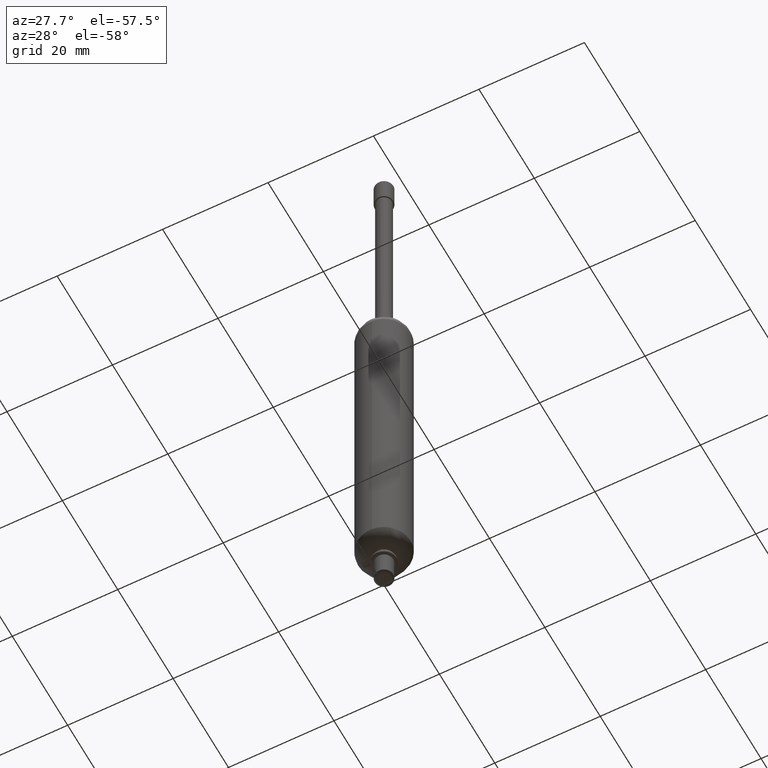
[diagram: clean part render]
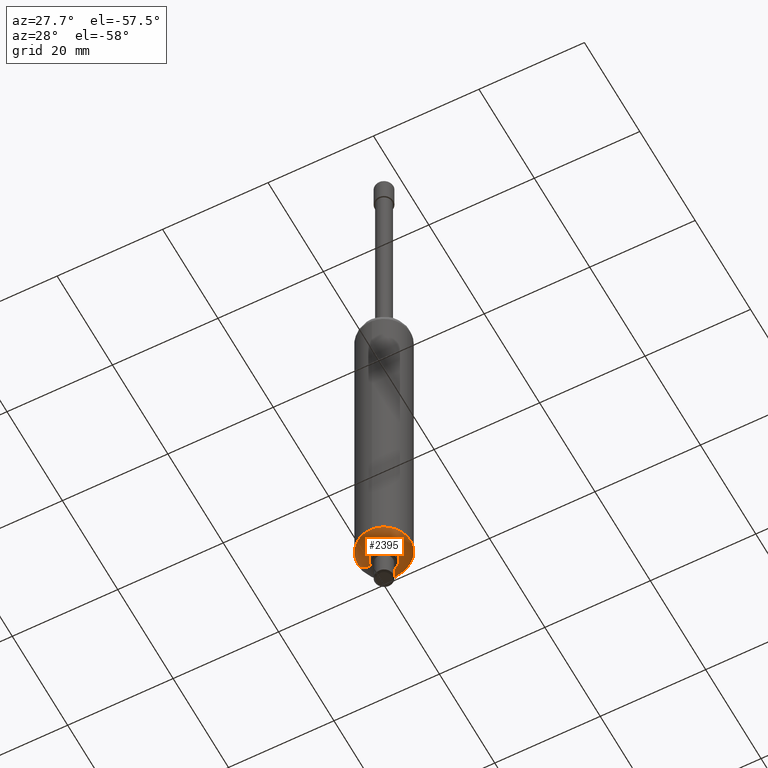
[diagram: same view with one face highlighted and labeled with its STEP entity id]
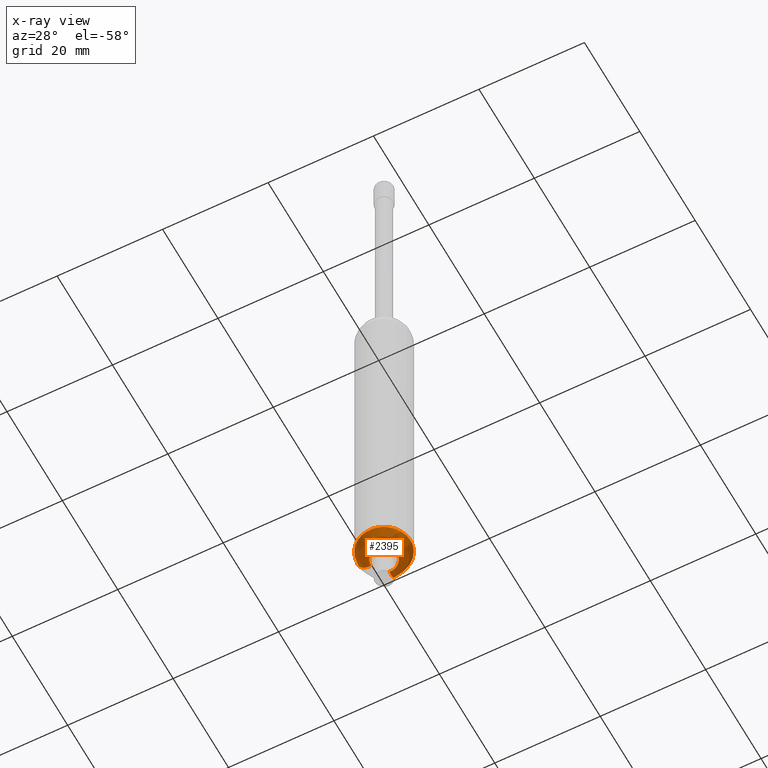
[diagram: x-ray of the same camera — body ghosted, the highlighted face saturated]
A machine part, auxiliary view. The second image highlights one B-rep face of the part: STEP entity #2395.
The next image is the same camera in x-ray: the body ghosted, the highlighted face saturated — about 0% of this face is hidden behind the body in this view.
In plain terms, the highlighted face is a freeform B-spline surface patch.
Its self-contained STEP definition (entity closure, byte-faithful):
#1209=CARTESIAN_POINT('',(-4.680717893870416,-1.758089871990479,-67.500000000000000));
#1210=VERTEX_POINT('',#1209);
#1211=CARTESIAN_POINT('',(-4.999999999999398,0.0,-67.500000000000000));
#1212=VERTEX_POINT('',#1211);
#1213=CARTESIAN_POINT('',(-4.680717893870416,-1.758089871990479,-67.500000000000000));
#1214=CARTESIAN_POINT('',(-4.999999999999398,-0.908036930369878,-67.500000000000000));
#1215=CARTESIAN_POINT('',(-4.999999999999398,0.0,-67.500000000000000));
#1223=(BOUNDED_CURVE()B_SPLINE_CURVE(2,(#1213,#1214,#1215),.UNSPECIFIED.,.F.,.U.)B_SPLINE_CURVE_WITH_KNOTS((3,3),(0.940284170896698,1.0),.UNSPECIFIED.)CURVE()GEOMETRIC_REPRESENTATION_ITEM()RATIONAL_B_SPLINE_CURVE((0.893499554633060,0.930038554399280,1.0))REPRESENTATION_ITEM(''));
#1224=EDGE_CURVE('',#1210,#1212,#1223,.T.);
#1295=CARTESIAN_POINT('',(0.305242697969078,-4.990673992090914,-67.500000000000000));
#1296=VERTEX_POINT('',#1295);
#1302=CARTESIAN_POINT('',(4.999999999999782,0.0,-67.500000000000000));
#1303=VERTEX_POINT('',#1302);
#1304=CARTESIAN_POINT('',(4.999999999999782,0.0,-67.500000000000000));
#1305=CARTESIAN_POINT('',(4.999999999999782,-4.703530333971672,-67.499999999999986));
#1306=CARTESIAN_POINT('',(0.305242697969078,-4.990673992090914,-67.500000000000000));
#1314=(BOUNDED_CURVE()B_SPLINE_CURVE(2,(#1304,#1305,#1306),.UNSPECIFIED.,.F.,.U.)B_SPLINE_CURVE_WITH_KNOTS((3,3),(0.500000000000000,0.739332962221595),.UNSPECIFIED.)CURVE()GEOMETRIC_REPRESENTATION_ITEM()RATIONAL_B_SPLINE_CURVE((1.0,0.719603993307035,0.976072041629537))REPRESENTATION_ITEM(''));
#1315=EDGE_CURVE('',#1303,#1296,#1314,.T.);
#1317=CARTESIAN_POINT('',(-0.577321146855354,4.966558193899402,-67.500000000000654));
#1318=VERTEX_POINT('',#1317);
#1319=CARTESIAN_POINT('',(-0.577321146855354,4.966558193899402,-67.500000000000654));
#1320=CARTESIAN_POINT('',(-0.289629145711620,4.999999999999590,-67.500000000000000));
#1321=CARTESIAN_POINT('',(1.918465E-013,4.999999999999590,-67.500000000000000));
#1322=CARTESIAN_POINT('',(4.999999999999782,4.999999999999591,-67.500000000000000));
#1323=CARTESIAN_POINT('',(4.999999999999782,0.0,-67.500000000000000));
#1331=(BOUNDED_CURVE()B_SPLINE_CURVE(2,(#1319,#1320,#1321,#1322,#1323),.UNSPECIFIED.,.F.,.U.)B_SPLINE_CURVE_WITH_KNOTS((3,2,3),(0.229999999984999,0.250000000000000,0.500000000000000),.UNSPECIFIED.)CURVE()GEOMETRIC_REPRESENTATION_ITEM()RATIONAL_B_SPLINE_CURVE((0.956886118161134,0.976568542477349,1.0,0.707106781186548,1.0))REPRESENTATION_ITEM(''));
#1332=EDGE_CURVE('',#1318,#1303,#1331,.T.);
#1364=CARTESIAN_POINT('',(0.305242697969078,-4.990673992090914,-67.500000000000000));
#1365=CARTESIAN_POINT('',(0.152763816788577,-4.999999999999590,-67.500000000000000));
#1366=CARTESIAN_POINT('',(1.918465E-013,-4.999999999999590,-67.500000000000000));
#1367=CARTESIAN_POINT('',(-3.463047978419818,-4.999999999999589,-67.500000000000014));
#1368=CARTESIAN_POINT('',(-4.680717893870416,-1.758089871990479,-67.500000000000000));
#1376=(BOUNDED_CURVE()B_SPLINE_CURVE(2,(#1364,#1365,#1366,#1367,#1368),.UNSPECIFIED.,.F.,.U.)B_SPLINE_CURVE_WITH_KNOTS((3,2,3),(0.739332962221596,0.750000000000000,0.940284170896697),.UNSPECIFIED.)CURVE()GEOMETRIC_REPRESENTATION_ITEM()RATIONAL_B_SPLINE_CURVE((0.976072041629539,0.987502787879514,1.0,0.777068226787269,0.893499554633059))REPRESENTATION_ITEM(''));
#1377=EDGE_CURVE('',#1296,#1210,#1376,.T.);
#2256=CARTESIAN_POINT('',(-0.267993327698306,2.305484134093230,-69.993584130551255));
#2257=CARTESIAN_POINT('',(-0.278313684324115,2.394267756668175,-70.000000025659148));
#2258=CARTESIAN_POINT('',(-0.288660594720444,2.483279815141730,-69.999999999999901));
#2259=CARTESIAN_POINT('',(-0.577321024131656,4.966558208165012,-69.999999284152835));
#2260=CARTESIAN_POINT('',(-0.577321024131655,4.966558208165012,-67.499999999999986));
#2261=CARTESIAN_POINT('',(-0.577321024131656,4.966558208165012,-67.410389022367795));
#2262=CARTESIAN_POINT('',(-0.576580222117368,4.960185261102812,-67.321008017281073));
#2263=CARTESIAN_POINT('',(-0.134446276287512,2.321007866476656,-69.993584130551227));
#2264=CARTESIAN_POINT('',(-0.139623769063982,2.410389304138031,-70.000000025659148));
#2265=CARTESIAN_POINT('',(-0.144814583274976,2.500000715846860,-69.999999999999901));
#2266=CARTESIAN_POINT('',(-0.289629083618092,4.999999999999591,-69.999999284152821));
#2267=CARTESIAN_POINT('',(-0.289629083618092,4.999999999999589,-67.500000000000000));
#2268=CARTESIAN_POINT('',(-0.289629083618092,4.999999999999590,-67.410389022367809));
#2269=CARTESIAN_POINT('',(-0.289257439767319,4.993584141375684,-67.321008017281073));
#2270=CARTESIAN_POINT('',(1.916869E-013,2.321007866476657,-69.993584130551227));
#2271=CARTESIAN_POINT('',(1.916869E-013,2.410389304138031,-70.000000025659133));
#2272=CARTESIAN_POINT('',(1.916869E-013,2.500000715846860,-69.999999999999901));
#2273=CARTESIAN_POINT('',(1.916869E-013,4.999999999999590,-69.999999284152850));
#2274=CARTESIAN_POINT('',(1.916869E-013,4.999999999999590,-67.500000000000000));
#2275=CARTESIAN_POINT('',(1.916869E-013,4.999999999999590,-67.410389022367795));
#2276=CARTESIAN_POINT('',(1.916869E-013,4.993584141375683,-67.321008017281073));
#2277=CARTESIAN_POINT('',(2.321007866476848,2.321007866476658,-69.993584130551255));
#2278=CARTESIAN_POINT('',(2.410389304138224,2.410389304138032,-70.000000025659148));
#2279=CARTESIAN_POINT('',(2.500000715847053,2.500000715846860,-69.999999999999901));
#2280=CARTESIAN_POINT('',(4.999999999999782,4.999999999999590,-69.999999284152835));
#2281=CARTESIAN_POINT('',(4.999999999999782,4.999999999999591,-67.500000000000000));
#2282=CARTESIAN_POINT('',(4.999999999999782,4.999999999999590,-67.410389022367809));
#2283=CARTESIAN_POINT('',(4.993584141375874,4.993584141375682,-67.321008017281073));
#2284=CARTESIAN_POINT('',(2.321007866476848,0.0,-69.993584130551227));
#2285=CARTESIAN_POINT('',(2.410389304138223,0.0,-70.000000025659133));
#2286=CARTESIAN_POINT('',(2.500000715847052,0.0,-69.999999999999901));
#2287=CARTESIAN_POINT('',(4.999999999999782,0.0,-69.999999284152850));
#2288=CARTESIAN_POINT('',(4.999999999999782,0.0,-67.500000000000000));
#2289=CARTESIAN_POINT('',(4.999999999999782,0.0,-67.410389022367795));
#2290=CARTESIAN_POINT('',(4.993584141375875,0.0,-67.321008017281073));
#2291=CARTESIAN_POINT('',(2.321007866476848,-2.321007866476658,-69.993584130551255));
#2292=CARTESIAN_POINT('',(2.410389304138224,-2.410389304138032,-70.000000025659148));
#2293=CARTESIAN_POINT('',(2.500000715847053,-2.500000715846860,-69.999999999999901));
#2294=CARTESIAN_POINT('',(4.999999999999782,-4.999999999999590,-69.999999284152835));
#2295=CARTESIAN_POINT('',(4.999999999999782,-4.999999999999591,-67.500000000000000));
#2296=CARTESIAN_POINT('',(4.999999999999782,-4.999999999999590,-67.410389022367809));
#2297=CARTESIAN_POINT('',(4.993584141375874,-4.993584141375682,-67.321008017281073));
#2298=CARTESIAN_POINT('',(1.916869E-013,-2.321007866476657,-69.993584130551227));
#2299=CARTESIAN_POINT('',(1.916869E-013,-2.410389304138031,-70.000000025659133));
#2300=CARTESIAN_POINT('',(1.916869E-013,-2.500000715846860,-69.999999999999901));
#2301=CARTESIAN_POINT('',(1.916869E-013,-4.999999999999590,-69.999999284152850));
#2302=CARTESIAN_POINT('',(1.916869E-013,-4.999999999999590,-67.500000000000000));
#2303=CARTESIAN_POINT('',(1.916869E-013,-4.999999999999590,-67.410389022367795));
#2304=CARTESIAN_POINT('',(1.916869E-013,-4.993584141375683,-67.321008017281073));
#2305=CARTESIAN_POINT('',(-2.321007866476466,-2.321007866476658,-69.993584130551255));
#2306=CARTESIAN_POINT('',(-2.410389304137841,-2.410389304138032,-70.000000025659148));
#2307=CARTESIAN_POINT('',(-2.500000715846669,-2.500000715846860,-69.999999999999901));
#2308=CARTESIAN_POINT('',(-4.999999999999398,-4.999999999999590,-69.999999284152835));
#2309=CARTESIAN_POINT('',(-4.999999999999398,-4.999999999999591,-67.500000000000000));
#2310=CARTESIAN_POINT('',(-4.999999999999398,-4.999999999999590,-67.410389022367809));
#2311=CARTESIAN_POINT('',(-4.993584141375491,-4.993584141375682,-67.321008017281073));
#2312=CARTESIAN_POINT('',(-2.321007866476465,0.0,-69.993584130551227));
#2313=CARTESIAN_POINT('',(-2.410389304137840,0.0,-70.000000025659133));
#2314=CARTESIAN_POINT('',(-2.500000715846669,0.0,-69.999999999999901));
#2315=CARTESIAN_POINT('',(-4.999999999999398,0.0,-69.999999284152850));
#2316=CARTESIAN_POINT('',(-4.999999999999398,0.0,-67.500000000000000));
#2317=CARTESIAN_POINT('',(-4.999999999999398,0.0,-67.410389022367795));
#2318=CARTESIAN_POINT('',(-4.993584141375493,0.0,-67.321008017281073));
#2326=(BOUNDED_SURFACE()B_SPLINE_SURFACE(2,2,((#2256,#2263,#2270,#2277,#2284,#2291,#2298,#2305,#2312),(#2257,#2264,#2271,#2278,#2285,#2292,#2299,#2306,#2313),(#2258,#2265,#2272,#2279,#2286,#2293,#2300,#2307,#2314),(#2259,#2266,#2273,#2280,#2287,#2294,#2301,#2308,#2315),(#2260,#2267,#2274,#2281,#2288,#2295,#2302,#2309,#2316),(#2261,#2268,#2275,#2282,#2289,#2296,#2303,#2310,#2317),(#2262,#2269,#2276,#2283,#2290,#2297,#2304,#2311,#2318)),.UNSPECIFIED.,.F.,.F.,.U.)B_SPLINE_SURFACE_WITH_KNOTS((3,2,2,3),(3,2,2,2,3),(0.0,0.206900669404540,4.349035454468279,4.555935136310929),(0.0,0.662741561538205,8.947012808999427,17.231284056460652,25.515555303921872),.UNSPECIFIED.)GEOMETRIC_REPRESENTATION_ITEM()RATIONAL_B_SPLINE_SURFACE(((0.930286016118709,0.949421293030045,0.972201383685961,0.687450191083288,0.972201383685961,0.687450191083288,0.972201383685961,0.687450191083288,0.972201383685961),(0.942886801476260,0.962281266973622,0.985369915457783,0.696761749197413,0.985369915457783,0.696761749197413,0.985369915457783,0.696761749197413,0.985369915457783),(0.956886126402807,0.976568547383107,1.0,0.707106781186548,1.0,0.707106781186548,1.0,0.707106781186548,1.0),(0.676620765674158,0.690538341012067,0.707106882422632,0.500000071584722,0.707106882422632,0.500000071584722,0.707106882422632,0.500000071584722,0.707106882422632),(0.956886126402807,0.976568547383107,1.0,0.707106781186548,1.0,0.707106781186548,1.0,0.707106781186548,1.0),(0.942886868296729,0.962281335168537,0.985369985288944,0.696761798575501,0.985369985288944,0.696761798575501,0.985369985288944,0.696761798575501,0.985369985288944),(0.930286136408882,0.949421415794496,0.972201509395980,0.687450279973695,0.972201509395980,0.687450279973695,0.972201509395980,0.687450279973695,0.972201509395980)))REPRESENTATION_ITEM('')SURFACE());
#2327=ORIENTED_EDGE('',*,*,#1332,.T.);
#2328=ORIENTED_EDGE('',*,*,#1315,.T.);
#2329=ORIENTED_EDGE('',*,*,#1377,.T.);
#2330=ORIENTED_EDGE('',*,*,#1224,.T.);
#2331=CARTESIAN_POINT('',(-2.500000000598436,0.0,-70.0));
#2332=VERTEX_POINT('',#2331);
#2333=CARTESIAN_POINT('',(-2.500000000598436,0.0,-69.999999999999986));
#2334=CARTESIAN_POINT('',(-4.999999999999394,0.0,-69.999999997603766));
#2335=CARTESIAN_POINT('',(-4.999999999999398,0.0,-67.500000000000014));
#2343=(BOUNDED_CURVE()B_SPLINE_CURVE(2,(#2333,#2334,#2335),.UNSPECIFIED.,.F.,.U.)B_SPLINE_CURVE_WITH_KNOTS((3,3),(0.249999949551383,0.500000000000000),.UNSPECIFIED.)CURVE()GEOMETRIC_REPRESENTATION_ITEM()RATIONAL_B_SPLINE_CURVE((1.000000118208446,0.707106823318422,0.999999999999999))REPRESENTATION_ITEM(''));
#2344=EDGE_CURVE('',#2332,#1212,#2343,.T.);
#2345=ORIENTED_EDGE('',*,*,#2344,.F.);
#2346=CARTESIAN_POINT('',(2.499999999999782,0.0,-70.0));
#2347=VERTEX_POINT('',#2346);
#2348=CARTESIAN_POINT('',(2.499999999999782,0.0,-70.0));
#2349=CARTESIAN_POINT('',(2.499999999999783,-2.499999999999591,-70.0));
#2350=CARTESIAN_POINT('',(1.918465E-013,-2.499999999999590,-70.0));
#2351=CARTESIAN_POINT('',(-2.499999999999398,-2.499999999999591,-70.0));
#2352=CARTESIAN_POINT('',(-2.500000000598436,0.0,-70.0));
#2360=(BOUNDED_CURVE()B_SPLINE_CURVE(2,(#2348,#2349,#2350,#2351,#2352),.UNSPECIFIED.,.F.,.U.)B_SPLINE_CURVE_WITH_KNOTS((3,2,3),(0.500000000000000,0.750000000000000,1.0),.UNSPECIFIED.)CURVE()GEOMETRIC_REPRESENTATION_ITEM()RATIONAL_B_SPLINE_CURVE((1.0,0.707106781186547,1.0,0.707106781186547,1.0))REPRESENTATION_ITEM(''));
#2361=EDGE_CURVE('',#2347,#2332,#2360,.T.);
#2362=ORIENTED_EDGE('',*,*,#2361,.F.);
#2363=CARTESIAN_POINT('',(-0.288660575783804,2.483279092718596,-70.0));
#2364=VERTEX_POINT('',#2363);
#2365=CARTESIAN_POINT('',(-0.288660575783804,2.483279092718596,-70.0));
#2366=CARTESIAN_POINT('',(-0.144814575694200,2.499999999999590,-70.0));
#2367=CARTESIAN_POINT('',(1.918465E-013,2.499999999999590,-70.0));
#2368=CARTESIAN_POINT('',(2.499999999999783,2.499999999999591,-70.0));
#2369=CARTESIAN_POINT('',(2.499999999999782,0.0,-70.0));
#2377=(BOUNDED_CURVE()B_SPLINE_CURVE(2,(#2365,#2366,#2367,#2368,#2369),.UNSPECIFIED.,.F.,.U.)B_SPLINE_CURVE_WITH_KNOTS((3,2,3),(0.229999999602166,0.250000000000000,0.500000000000000),.UNSPECIFIED.)CURVE()GEOMETRIC_REPRESENTATION_ITEM()RATIONAL_B_SPLINE_CURVE((0.956886117407626,0.976568542028832,1.0,0.707106781186547,1.0))REPRESENTATION_ITEM(''));
#2378=EDGE_CURVE('',#2364,#2347,#2377,.T.);
#2379=ORIENTED_EDGE('',*,*,#2378,.F.);
#2380=CARTESIAN_POINT('',(-0.288660575783804,2.483279092718596,-70.0));
#2381=CARTESIAN_POINT('',(-0.577321146634982,4.966558193923728,-70.000000007861004));
#2382=CARTESIAN_POINT('',(-0.577321146855354,4.966558193899402,-67.500000000000654));
#2390=(BOUNDED_CURVE()B_SPLINE_CURVE(2,(#2380,#2381,#2382),.UNSPECIFIED.,.F.,.U.)B_SPLINE_CURVE_WITH_KNOTS((3,3),(0.249999948826087,0.499999999999909),.UNSPECIFIED.)CURVE()GEOMETRIC_REPRESENTATION_ITEM()RATIONAL_B_SPLINE_CURVE((0.956886232928883,0.676620702498293,0.956886118190456))REPRESENTATION_ITEM(''));
#2391=EDGE_CURVE('',#2364,#1318,#2390,.T.);
#2392=ORIENTED_EDGE('',*,*,#2391,.T.);
#2393=EDGE_LOOP('',(#2327,#2328,#2329,#2330,#2345,#2362,#2379,#2392));
#2394=FACE_OUTER_BOUND('',#2393,.T.);
#2395=ADVANCED_FACE('',(#2394),#2326,.T.);